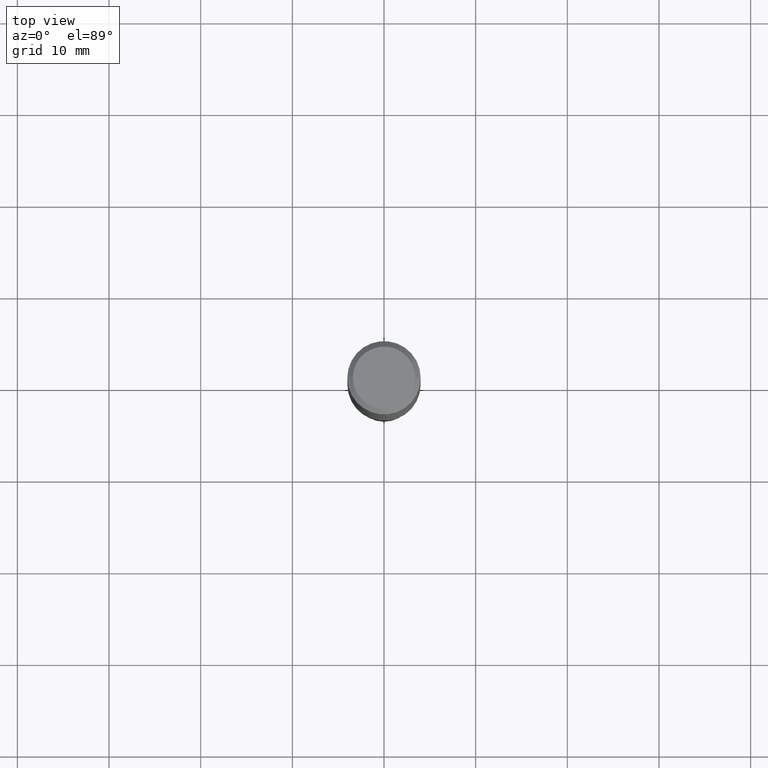
[diagram: clean part render]
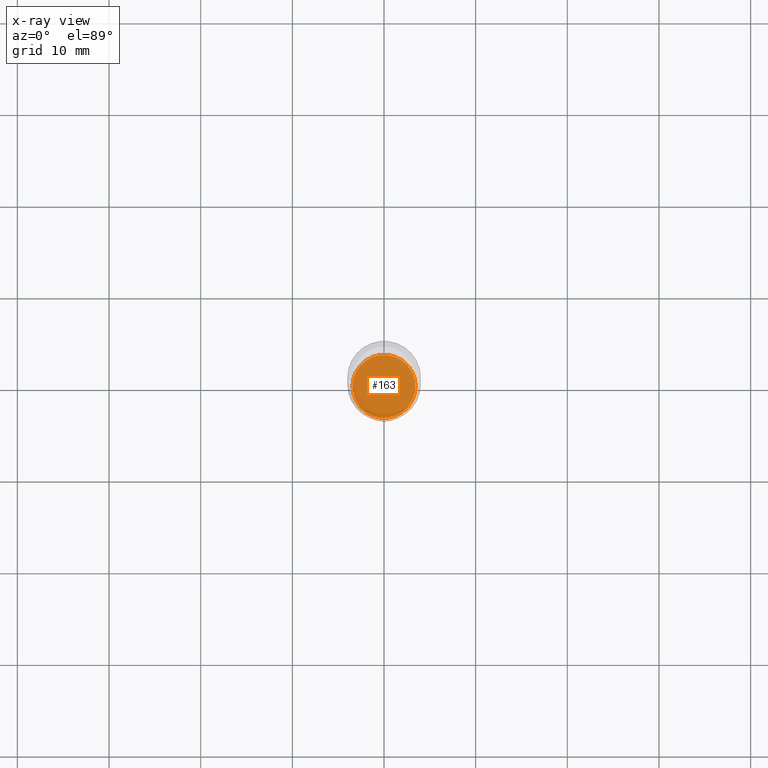
[diagram: x-ray — body ghosted, one internal face saturated and labeled with its STEP entity id]
A machine part, top view, then the same camera in x-ray: the body is ghosted and one INTERNAL B-rep face — a face not visible from any outside direction — is saturated and labeled: STEP entity #163.
In plain terms, the highlighted planar face has unit normal (-0, 0, 1).
Its self-contained STEP definition (entity closure, byte-faithful):
#25 = DIRECTION ( 'NONE',  ( 1.000000000000000000, -6.982962677686265922E-15, 4.876176775795935793E-29 ) ) ;
#64 = FACE_OUTER_BOUND ( 'NONE', #389, .T. ) ;
#66 = AXIS2_PLACEMENT_3D ( 'NONE', #291, #339, #25 ) ;
#71 = DIRECTION ( 'NONE',  ( -2.445468806185136597E-29, 3.491481338843145583E-15, 1.000000000000000000 ) ) ;
#74 = CARTESIAN_POINT ( 'NONE',  ( 0.1353499999999999981, -8.505248541421898286E-15, -2.165299999999999780 ) ) ;
#82 = VERTEX_POINT ( 'NONE', #464 ) ;
#92 = ORIENTED_EDGE ( 'NONE', *, *, #349, .F. ) ;
#125 = CIRCLE ( 'NONE', #233, 0.1353499999999999981 ) ;
#145 = PLANE ( 'NONE',  #66 ) ;
#163 = ADVANCED_FACE ( 'NONE', ( #64 ), #145, .F. ) ;
#174 = ORIENTED_EDGE ( 'NONE', *, *, #412, .F. ) ;
#189 = AXIS2_PLACEMENT_3D ( 'NONE', #342, #71, #263 ) ;
#190 = CARTESIAN_POINT ( 'NONE',  ( 5.295173606032675561E-29, -7.560104542997063911E-15, -2.165299999999999780 ) ) ;
#233 = AXIS2_PLACEMENT_3D ( 'NONE', #190, #424, #387 ) ;
#263 = DIRECTION ( 'NONE',  ( 1.000000000000000000, -6.982962677686265133E-15, 0.000000000000000000 ) ) ;
#291 = CARTESIAN_POINT ( 'NONE',  ( 5.295173606032675561E-29, -7.560104542997063911E-15, -2.165299999999999780 ) ) ;
#335 = VERTEX_POINT ( 'NONE', #74 ) ;
#339 = DIRECTION ( 'NONE',  ( -2.438088387897960049E-29, 3.491481338843145188E-15, 1.000000000000000000 ) ) ;
#342 = CARTESIAN_POINT ( 'NONE',  ( 5.295173606032675561E-29, -7.560104542997063911E-15, -2.165299999999999780 ) ) ;
#349 = EDGE_CURVE ( 'NONE', #335, #82, #125, .T. ) ;
#387 = DIRECTION ( 'NONE',  ( 1.000000000000000000, -6.982962677686265133E-15, 0.000000000000000000 ) ) ;
#389 = EDGE_LOOP ( 'NONE', ( #92, #174 ) ) ;
#412 = EDGE_CURVE ( 'NONE', #82, #335, #471, .T. ) ;
#424 = DIRECTION ( 'NONE',  ( -2.445468806185136597E-29, 3.491481338843145583E-15, 1.000000000000000000 ) ) ;
#464 = CARTESIAN_POINT ( 'NONE',  ( -0.1353499999999999981, -6.595735722971656530E-15, -2.165299999999999780 ) ) ;
#471 = CIRCLE ( 'NONE', #189, 0.1353499999999999981 ) ;